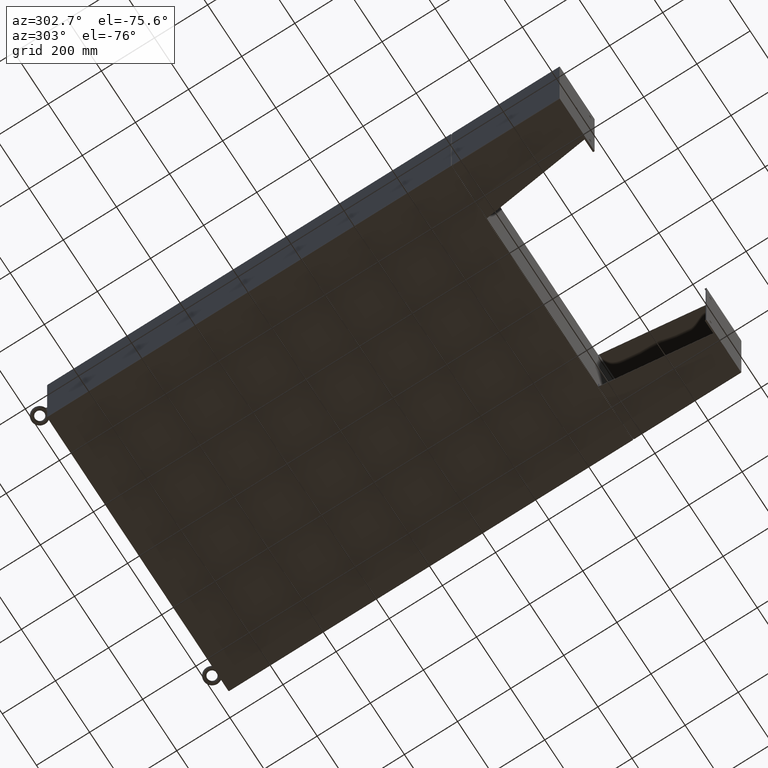
[diagram: clean part render]
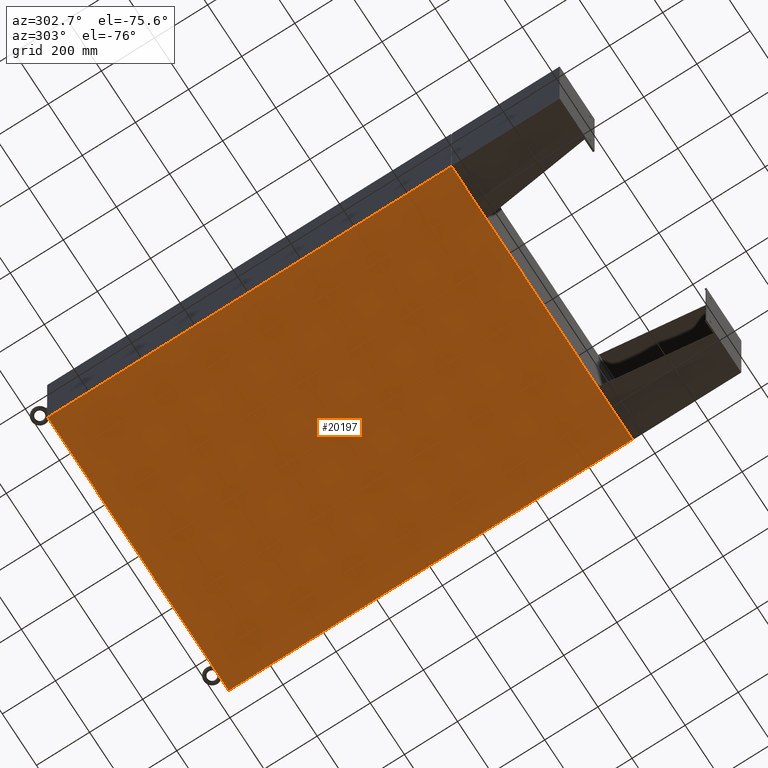
[diagram: same view with one face highlighted and labeled with its STEP entity id]
A machine part, auxiliary view. The second image highlights one B-rep face of the part: STEP entity #20197.
In plain terms, the highlighted planar face has unit normal (0, 0, -1).
Its self-contained STEP definition (entity closure, byte-faithful):
#1460 = EDGE_CURVE ( 'NONE', #10578, #45910, #33403, .T. ) ;
#2167 = PLANE ( 'NONE',  #58782 ) ;
#2244 = LINE ( 'NONE', #9879, #39440 ) ;
#4293 = DIRECTION ( 'NONE',  ( 1.000000000000000000, 0.0000000000000000000, 0.0000000000000000000 ) ) ;
#9451 = ORIENTED_EDGE ( 'NONE', *, *, #1460, .T. ) ;
#9879 = CARTESIAN_POINT ( 'NONE',  ( -21.00000000000000400, 29.92530000000000000, -0.07470000000000000300 ) ) ;
#10130 = VERTEX_POINT ( 'NONE', #62995 ) ;
#10578 = VERTEX_POINT ( 'NONE', #41103 ) ;
#11759 = FACE_OUTER_BOUND ( 'NONE', #23884, .T. ) ;
#12041 = DIRECTION ( 'NONE',  ( -0.0000000000000000000, -1.000000000000000000, -0.0000000000000000000 ) ) ;
#14192 = DIRECTION ( 'NONE',  ( -1.000000000000000000, 0.0000000000000000000, -0.0000000000000000000 ) ) ;
#14541 = DIRECTION ( 'NONE',  ( -1.000000000000000000, -0.0000000000000000000, -0.0000000000000000000 ) ) ;
#17622 = EDGE_CURVE ( 'NONE', #52756, #10130, #58027, .T. ) ;
#20197 = ADVANCED_FACE ( 'NONE', ( #11759 ), #2167, .T. ) ;
#23884 = EDGE_LOOP ( 'NONE', ( #54692, #61964, #60992, #9451 ) ) ;
#27664 = DIRECTION ( 'NONE',  ( -0.0000000000000000000, 1.000000000000000000, -0.0000000000000000000 ) ) ;
#28240 = CARTESIAN_POINT ( 'NONE',  ( -21.00000000000000700, -29.92530000000000400, -0.07470000000000000300 ) ) ;
#29065 = CARTESIAN_POINT ( 'NONE',  ( 0.0000000000000000000, 0.0000000000000000000, -0.07470000000000000300 ) ) ;
#29258 = CARTESIAN_POINT ( 'NONE',  ( -20.91230000000003700, -29.92530000000000700, -0.07469999999999994700 ) ) ;
#33403 = LINE ( 'NONE', #36491, #57803 ) ;
#33623 = VECTOR ( 'NONE', #27664, 39.37007874015748100 ) ;
#36491 = CARTESIAN_POINT ( 'NONE',  ( 20.91229999999999800, 29.92530000000000400, -0.07469999999999994700 ) ) ;
#39440 = VECTOR ( 'NONE', #14541, 39.37007874015748100 ) ;
#39671 = VECTOR ( 'NONE', #4293, 39.37007874015748100 ) ;
#41103 = CARTESIAN_POINT ( 'NONE',  ( 20.91229999999999800, 29.92530000000000400, -0.07469999999999994700 ) ) ;
#43564 = EDGE_CURVE ( 'NONE', #52756, #45910, #54202, .T. ) ;
#45070 = CARTESIAN_POINT ( 'NONE',  ( 20.91229999999999800, -29.92530000000000400, -0.07470000000000000300 ) ) ;
#45910 = VERTEX_POINT ( 'NONE', #45070 ) ;
#47383 = DIRECTION ( 'NONE',  ( 0.0000000000000000000, 0.0000000000000000000, -1.000000000000000000 ) ) ;
#52756 = VERTEX_POINT ( 'NONE', #55815 ) ;
#54202 = LINE ( 'NONE', #28240, #39671 ) ;
#54692 = ORIENTED_EDGE ( 'NONE', *, *, #43564, .F. ) ;
#55815 = CARTESIAN_POINT ( 'NONE',  ( -20.91230000000003700, -29.92530000000000400, -0.07469999999999994700 ) ) ;
#57803 = VECTOR ( 'NONE', #12041, 39.37007874015748100 ) ;
#58027 = LINE ( 'NONE', #29258, #33623 ) ;
#58782 = AXIS2_PLACEMENT_3D ( 'NONE', #29065, #47383, #14192 ) ;
#59581 = EDGE_CURVE ( 'NONE', #10578, #10130, #2244, .T. ) ;
#60992 = ORIENTED_EDGE ( 'NONE', *, *, #59581, .F. ) ;
#61964 = ORIENTED_EDGE ( 'NONE', *, *, #17622, .T. ) ;
#62995 = CARTESIAN_POINT ( 'NONE',  ( -20.91230000000001300, 29.92530000000000000, -0.07470000000000000300 ) ) ;